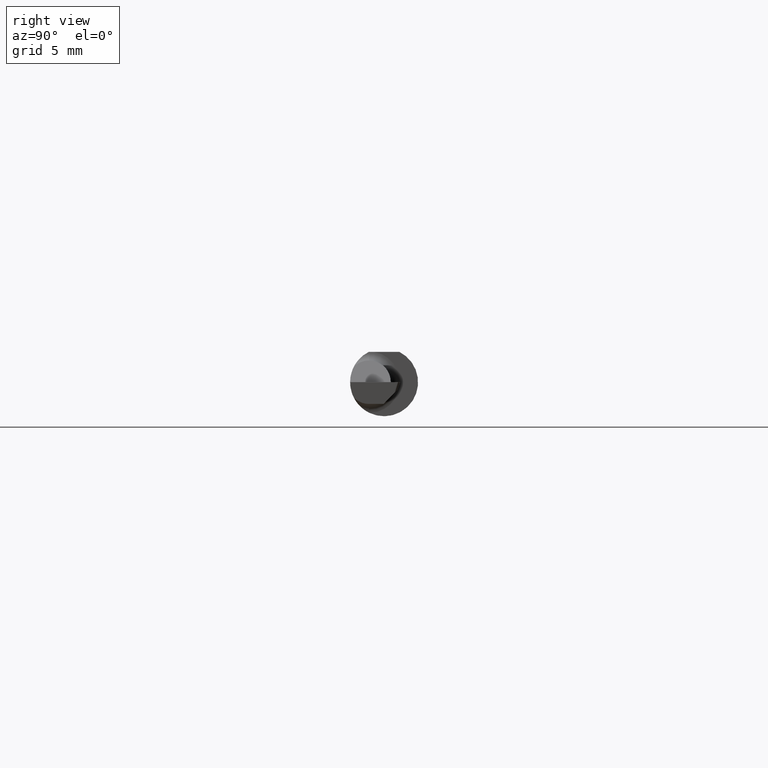
[diagram: clean part render]
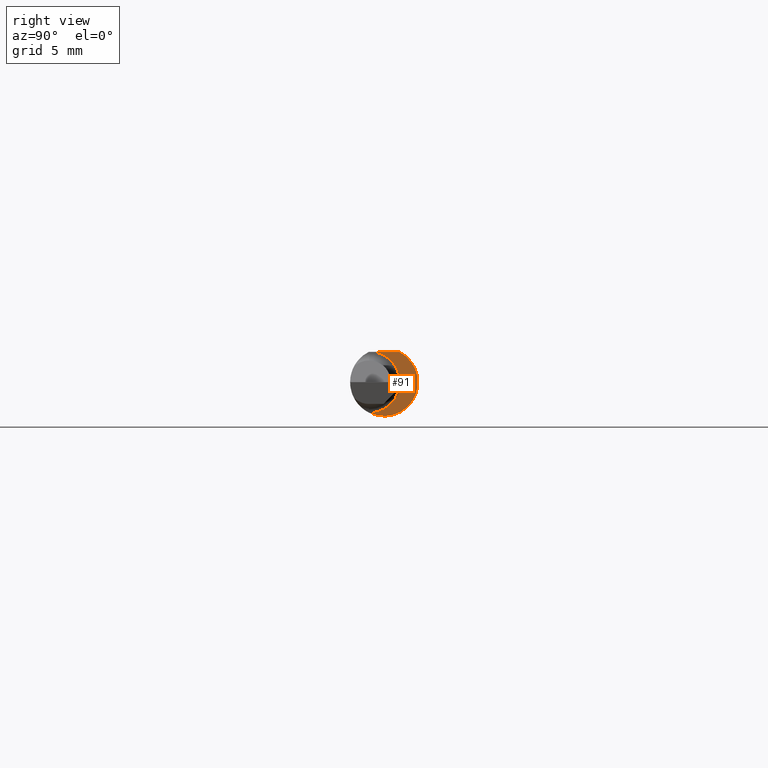
[diagram: same view with one face highlighted and labeled with its STEP entity id]
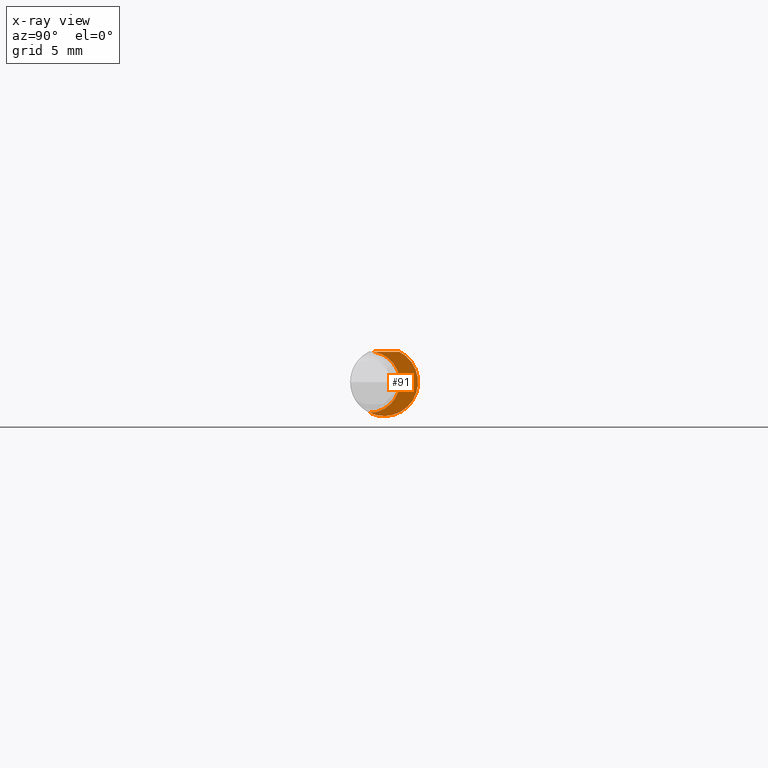
[diagram: x-ray of the same camera — body ghosted, the highlighted face saturated]
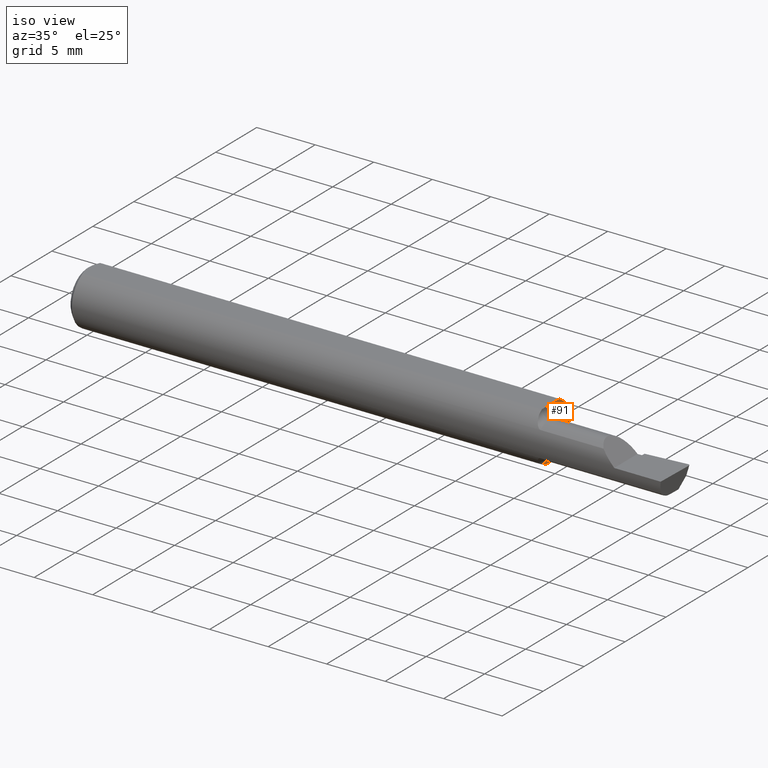
[diagram: same view with one face highlighted and labeled with its STEP entity id]
A machine part, right view. The second image highlights one B-rep face of the part: STEP entity #91.
The next image is the same camera in x-ray: the body ghosted, the highlighted face saturated — about 0% of this face is hidden behind the body in this view.
A second angle (iso view) of the same face is appended — the face is thin or edge-on in the first view.
In plain terms, the highlighted planar face has unit normal (1, 0, 0).
Its self-contained STEP definition (entity closure, byte-faithful):
#15 = VERTEX_POINT ( 'NONE', #202 ) ;
#61 = DIRECTION ( 'NONE',  ( 1.000000000000000000, 0.0000000000000000000, 0.0000000000000000000 ) ) ;
#63 = CARTESIAN_POINT ( 'NONE',  ( 1.559999999999999831, 0.0000000000000000000, 0.0000000000000000000 ) ) ;
#91 = ADVANCED_FACE ( 'NONE', ( #599 ), #349, .T. ) ;
#152 = DIRECTION ( 'NONE',  ( 0.0000000000000000000, 0.0000000000000000000, 1.000000000000000000 ) ) ;
#159 = ORIENTED_EDGE ( 'NONE', *, *, #370, .T. ) ;
#177 = DIRECTION ( 'NONE',  ( 0.0000000000000000000, 0.0000000000000000000, -1.000000000000000000 ) ) ;
#179 = AXIS2_PLACEMENT_3D ( 'NONE', #327, #385, #152 ) ;
#184 = VECTOR ( 'NONE', #270, 39.37007874015748143 ) ;
#202 = CARTESIAN_POINT ( 'NONE',  ( 1.559999999999999831, 0.04209513035969836975, 0.08360000000000000764 ) ) ;
#256 = CARTESIAN_POINT ( 'NONE',  ( 1.559999999999999831, 0.1436000000000000332, 0.08359999999999999376 ) ) ;
#267 = ORIENTED_EDGE ( 'NONE', *, *, #534, .T. ) ;
#270 = DIRECTION ( 'NONE',  ( 0.0000000000000000000, -1.000000000000000000, 1.189000693621284344E-16 ) ) ;
#302 = AXIS2_PLACEMENT_3D ( 'NONE', #63, #61, #177 ) ;
#310 = DIRECTION ( 'NONE',  ( 0.0000000000000000000, 0.0000000000000000000, -1.000000000000000000 ) ) ;
#314 = DIRECTION ( 'NONE',  ( 1.000000000000000000, 0.0000000000000000000, 0.0000000000000000000 ) ) ;
#315 = EDGE_LOOP ( 'NONE', ( #696, #267, #159 ) ) ;
#327 = CARTESIAN_POINT ( 'NONE',  ( 1.559999999999999831, -0.04150000000000000216, 0.0000000000000000000 ) ) ;
#349 = PLANE ( 'NONE',  #419 ) ;
#370 = EDGE_CURVE ( 'NONE', #433, #371, #558, .T. ) ;
#371 = VERTEX_POINT ( 'NONE', #382 ) ;
#382 = CARTESIAN_POINT ( 'NONE',  ( 1.559999999999999831, -0.03946024096385548907, -0.08487549341873931730 ) ) ;
#385 = DIRECTION ( 'NONE',  ( -1.000000000000000000, -0.0000000000000000000, -0.0000000000000000000 ) ) ;
#409 = CARTESIAN_POINT ( 'NONE',  ( 1.559999999999999831, 0.04339999999999997332, 0.0000000000000000000 ) ) ;
#419 = AXIS2_PLACEMENT_3D ( 'NONE', #409, #314, #310 ) ;
#433 = VERTEX_POINT ( 'NONE', #603 ) ;
#468 = LINE ( 'NONE', #256, #184 ) ;
#534 = EDGE_CURVE ( 'NONE', #15, #433, #468, .T. ) ;
#558 = CIRCLE ( 'NONE', #179, 0.08489999999999997549 ) ;
#578 = EDGE_CURVE ( 'NONE', #371, #15, #707, .T. ) ;
#599 = FACE_OUTER_BOUND ( 'NONE', #315, .T. ) ;
#603 = CARTESIAN_POINT ( 'NONE',  ( 1.559999999999999831, -0.02669966216601818085, 0.08360000000000000764 ) ) ;
#696 = ORIENTED_EDGE ( 'NONE', *, *, #578, .T. ) ;
#707 = CIRCLE ( 'NONE', #302, 0.09360000000000001652 ) ;